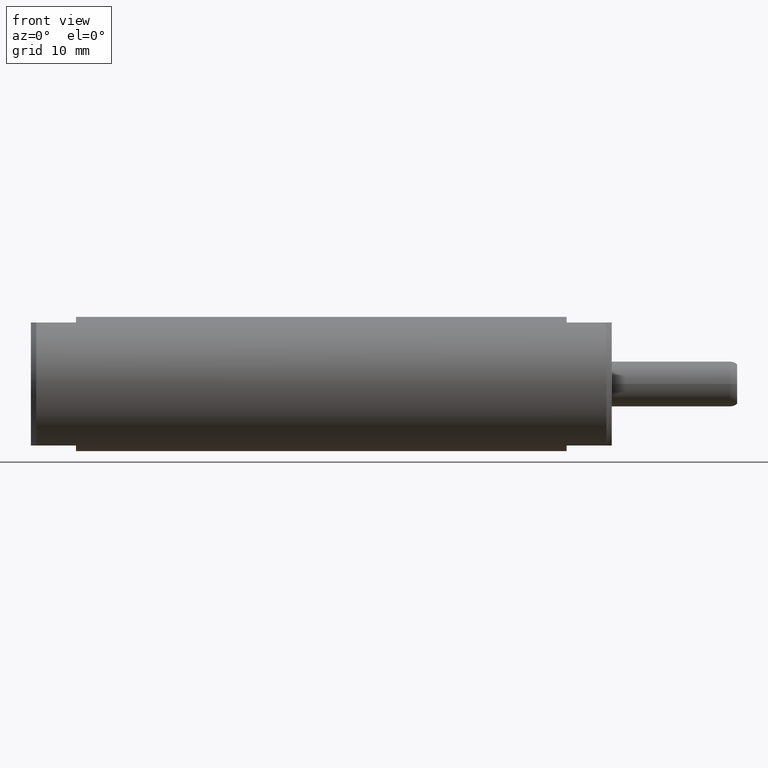
[diagram: clean part render]
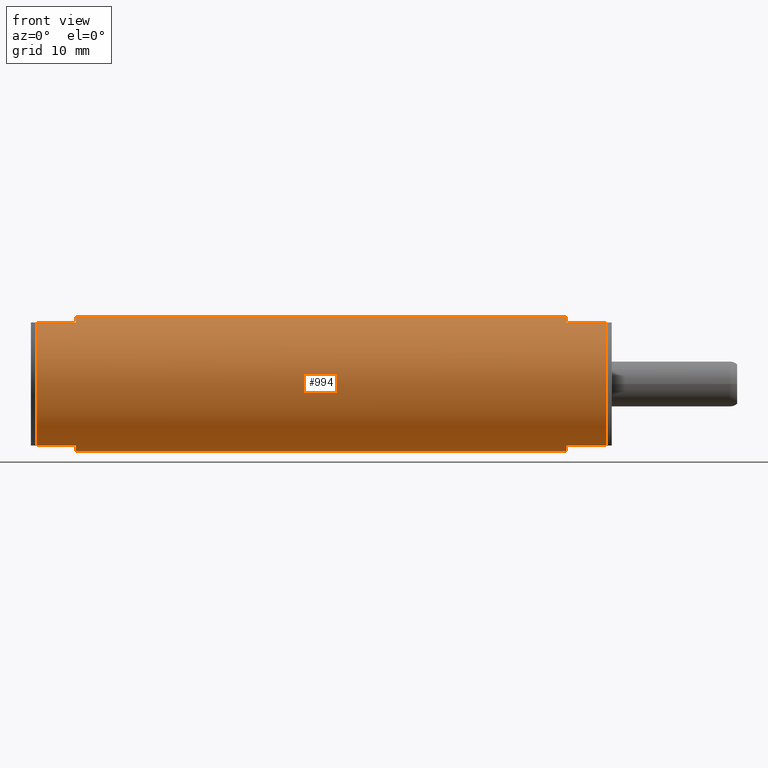
[diagram: same view with one face highlighted and labeled with its STEP entity id]
A machine part, front view. The second image highlights one B-rep face of the part: STEP entity #994.
In plain terms, the highlighted cylindrical surface (partial cylindrical patch) has radius 9.4488 mm, axis along (1, 0, 0).
Its self-contained STEP definition (entity closure, byte-faithful):
#276=DIRECTION('',(1.E0,0.E0,0.E0));
#277=VECTOR('',#276,2.2E-1);
#278=CARTESIAN_POINT('',(3.E-2,-1.486707772227E-1,3.41E-1));
#279=LINE('',#278,#277);
#311=DIRECTION('',(1.E0,0.E0,0.E0));
#312=VECTOR('',#311,2.2E-1);
#313=CARTESIAN_POINT('',(3.E-2,-1.486707772227E-1,-3.41E-1));
#314=LINE('',#313,#312);
#335=CARTESIAN_POINT('',(3.E-2,0.E0,0.E0));
#336=DIRECTION('',(1.E0,0.E0,0.E0));
#337=DIRECTION('',(0.E0,-3.996526269427E-1,9.166666666667E-1));
#338=AXIS2_PLACEMENT_3D('',#335,#336,#337);
#343=DIRECTION('',(1.E0,0.E0,0.E0));
#344=VECTOR('',#343,2.2E-1);
#345=CARTESIAN_POINT('',(2.969E0,-1.486707772227E-1,3.41E-1));
#346=LINE('',#345,#344);
#350=DIRECTION('',(1.E0,0.E0,0.E0));
#351=VECTOR('',#350,2.2E-1);
#352=CARTESIAN_POINT('',(2.969E0,-1.486707772227E-1,-3.41E-1));
#353=LINE('',#352,#351);
#357=CARTESIAN_POINT('',(2.969E0,0.E0,0.E0));
#358=DIRECTION('',(1.E0,0.E0,0.E0));
#359=DIRECTION('',(0.E0,-3.996526269427E-1,-9.166666666667E-1));
#360=AXIS2_PLACEMENT_3D('',#357,#358,#359);
#365=DIRECTION('',(1.E0,0.E0,0.E0));
#366=VECTOR('',#365,2.719E0);
#367=CARTESIAN_POINT('',(2.5E-1,0.E0,3.72E-1));
#368=LINE('',#367,#366);
#372=CARTESIAN_POINT('',(2.969E0,0.E0,0.E0));
#373=DIRECTION('',(1.E0,0.E0,0.E0));
#374=DIRECTION('',(0.E0,0.E0,1.E0));
#375=AXIS2_PLACEMENT_3D('',#372,#373,#374);
#395=DIRECTION('',(1.E0,0.E0,0.E0));
#396=VECTOR('',#395,2.719E0);
#397=CARTESIAN_POINT('',(2.5E-1,0.E0,-3.72E-1));
#398=LINE('',#397,#396);
#432=CARTESIAN_POINT('',(2.5E-1,0.E0,0.E0));
#433=DIRECTION('',(1.E0,0.E0,0.E0));
#434=DIRECTION('',(0.E0,0.E0,1.E0));
#435=AXIS2_PLACEMENT_3D('',#432,#433,#434);
#455=CARTESIAN_POINT('',(2.5E-1,0.E0,0.E0));
#456=DIRECTION('',(1.E0,0.E0,0.E0));
#457=DIRECTION('',(0.E0,-3.996526269427E-1,-9.166666666667E-1));
#458=AXIS2_PLACEMENT_3D('',#455,#456,#457);
#506=CARTESIAN_POINT('',(3.189E0,0.E0,0.E0));
#507=DIRECTION('',(-1.E0,0.E0,0.E0));
#508=DIRECTION('',(0.E0,-3.996526269427E-1,-9.166666666667E-1));
#509=AXIS2_PLACEMENT_3D('',#506,#507,#508);
#719=CARTESIAN_POINT('',(2.5E-1,0.E0,3.72E-1));
#721=VERTEX_POINT('',#719);
#724=CARTESIAN_POINT('',(2.5E-1,0.E0,-3.72E-1));
#726=VERTEX_POINT('',#724);
#730=CARTESIAN_POINT('',(2.5E-1,-1.486707772227E-1,3.41E-1));
#731=VERTEX_POINT('',#730);
#732=CARTESIAN_POINT('',(3.E-2,-1.486707772227E-1,3.41E-1));
#733=VERTEX_POINT('',#732);
#734=CARTESIAN_POINT('',(2.5E-1,-1.486707772227E-1,-3.41E-1));
#735=VERTEX_POINT('',#734);
#736=CARTESIAN_POINT('',(3.E-2,-1.486707772227E-1,-3.41E-1));
#737=VERTEX_POINT('',#736);
#764=CARTESIAN_POINT('',(2.969E0,-1.486707772227E-1,3.41E-1));
#765=CARTESIAN_POINT('',(3.189E0,-1.486707772227E-1,3.41E-1));
#766=VERTEX_POINT('',#764);
#767=VERTEX_POINT('',#765);
#769=CARTESIAN_POINT('',(2.969E0,0.E0,-3.72E-1));
#770=VERTEX_POINT('',#769);
#771=CARTESIAN_POINT('',(2.969E0,0.E0,3.72E-1));
#772=VERTEX_POINT('',#771);
#779=CARTESIAN_POINT('',(2.969E0,-1.486707772227E-1,-3.41E-1));
#780=VERTEX_POINT('',#779);
#781=CARTESIAN_POINT('',(3.189E0,-1.486707772227E-1,-3.41E-1));
#782=VERTEX_POINT('',#781);
#966=CARTESIAN_POINT('',(0.E0,0.E0,0.E0));
#967=DIRECTION('',(1.E0,0.E0,0.E0));
#968=DIRECTION('',(0.E0,0.E0,-1.E0));
#969=AXIS2_PLACEMENT_3D('',#966,#967,#968);
#970=CYLINDRICAL_SURFACE('',#969,3.72E-1);
#972=ORIENTED_EDGE('',*,*,#971,.T.);
#974=ORIENTED_EDGE('',*,*,#973,.F.);
#976=ORIENTED_EDGE('',*,*,#975,.F.);
#978=ORIENTED_EDGE('',*,*,#977,.T.);
#980=ORIENTED_EDGE('',*,*,#979,.F.);
#982=ORIENTED_EDGE('',*,*,#981,.F.);
#983=ORIENTED_EDGE('',*,*,#943,.F.);
#984=ORIENTED_EDGE('',*,*,#959,.F.);
#985=ORIENTED_EDGE('',*,*,#914,.T.);
#987=ORIENTED_EDGE('',*,*,#986,.F.);
#989=ORIENTED_EDGE('',*,*,#988,.T.);
#991=ORIENTED_EDGE('',*,*,#990,.T.);
#992=EDGE_LOOP('',(#972,#974,#976,#978,#980,#982,#983,#984,#985,#987,#989,
#991));
#993=FACE_OUTER_BOUND('',#992,.F.);
#339=CIRCLE('',#338,3.72E-1);
#361=CIRCLE('',#360,3.72E-1);
#376=CIRCLE('',#375,3.72E-1);
#436=CIRCLE('',#435,3.72E-1);
#459=CIRCLE('',#458,3.72E-1);
#510=CIRCLE('',#509,3.72E-1);
#914=EDGE_CURVE('',#733,#731,#279,.T.);
#943=EDGE_CURVE('',#737,#735,#314,.T.);
#959=EDGE_CURVE('',#733,#737,#339,.T.);
#971=EDGE_CURVE('',#766,#767,#346,.T.);
#973=EDGE_CURVE('',#782,#767,#510,.T.);
#975=EDGE_CURVE('',#780,#782,#353,.T.);
#977=EDGE_CURVE('',#780,#770,#361,.T.);
#979=EDGE_CURVE('',#726,#770,#398,.T.);
#981=EDGE_CURVE('',#735,#726,#459,.T.);
#986=EDGE_CURVE('',#721,#731,#436,.T.);
#988=EDGE_CURVE('',#721,#772,#368,.T.);
#990=EDGE_CURVE('',#772,#766,#376,.T.);
#994=ADVANCED_FACE('',(#993),#970,.T.);